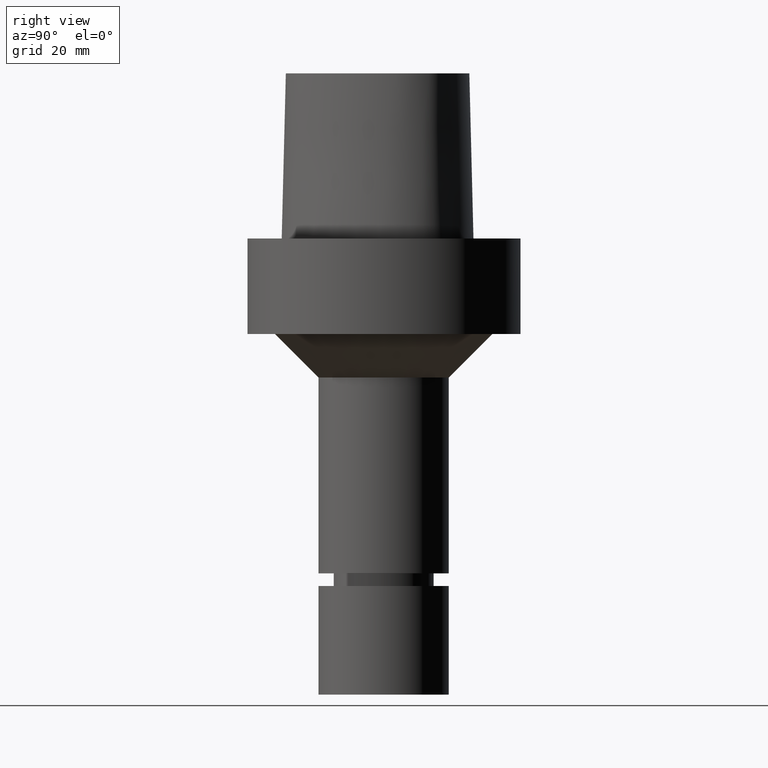
[diagram: clean part render]
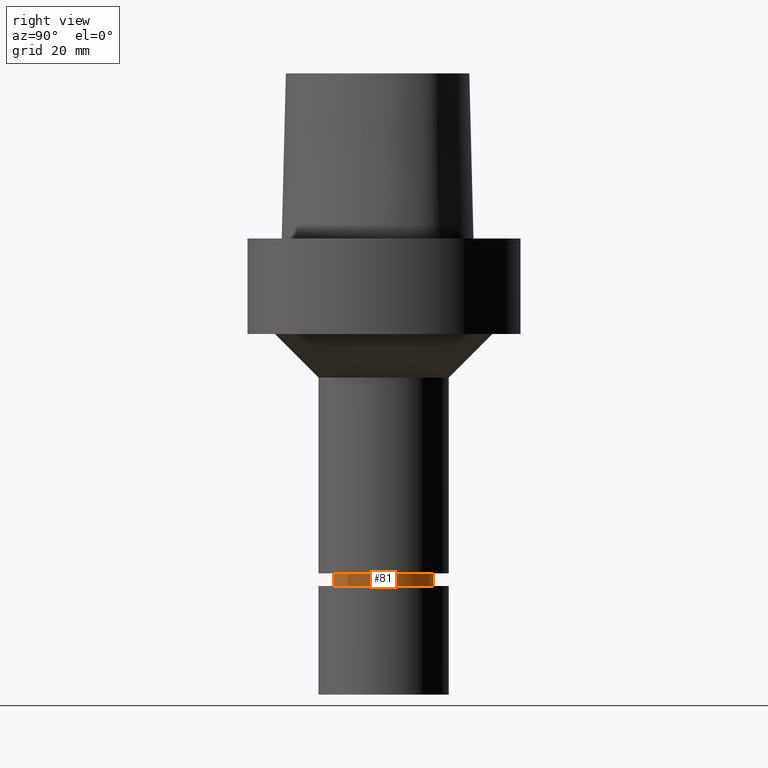
[diagram: same view with one face highlighted and labeled with its STEP entity id]
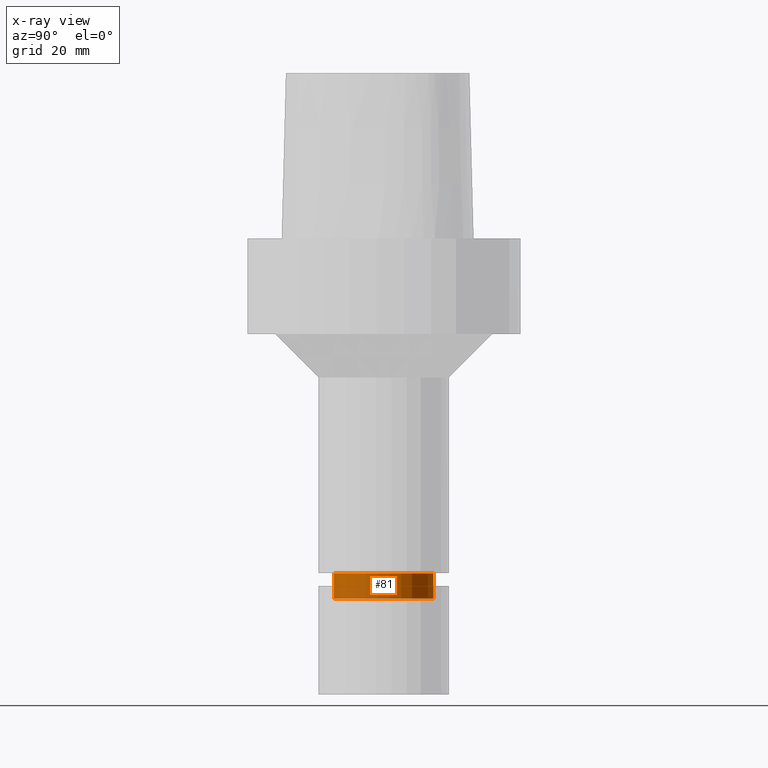
[diagram: x-ray of the same camera — body ghosted, the highlighted face saturated]
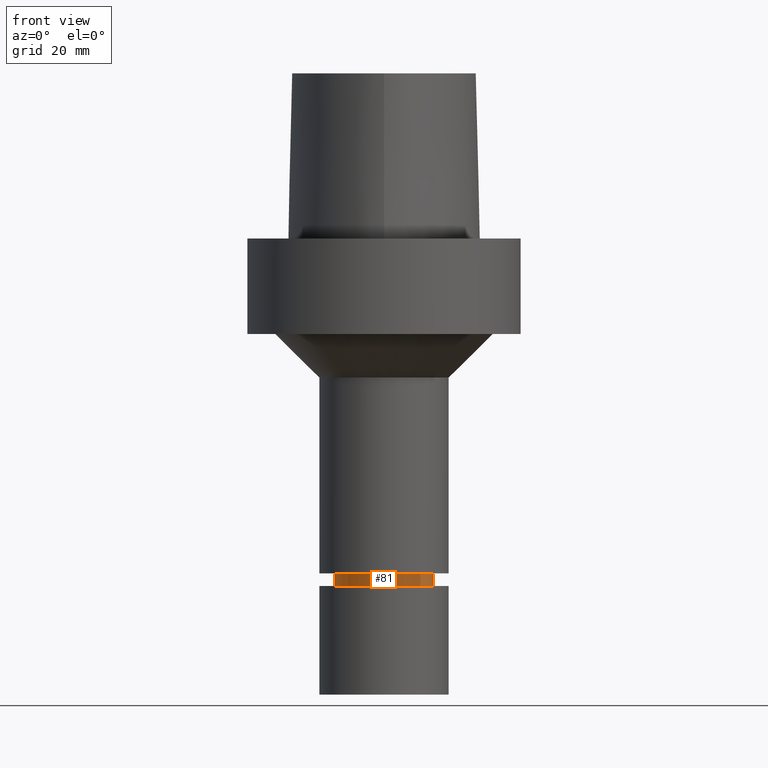
[diagram: same view with one face highlighted and labeled with its STEP entity id]
A machine part, right view. The second image highlights one B-rep face of the part: STEP entity #81.
The next image is the same camera in x-ray: the body ghosted, the highlighted face saturated — about 0% of this face is hidden behind the body in this view.
A second angle (front view) of the same face is appended — the face is thin or edge-on in the first view.
In plain terms, the highlighted cylindrical surface (bore or boss wall) has radius 11.5 mm, axis along (0, 0, -1).
Its self-contained STEP definition (entity closure, byte-faithful):
#81=ADVANCED_FACE('Unnamed[1]',(#203,#204),#205,.T.);
#100=EDGE_CURVE('Unnamed[1]',#233,#233,#234,.T.);
#131=EDGE_CURVE('Unnamed[1]',#279,#279,#280,.T.);
#203=FACE_BOUND('',#364,.T.);
#204=FACE_BOUND('',#365,.T.);
#205=CYLINDRICAL_SURFACE('',#366,11.4999999999964);
#233=VERTEX_POINT('',#486);
#234=CIRCLE('',#487,11.4999999999907);
#279=VERTEX_POINT('',#562);
#280=CIRCLE('',#563,11.5000000000021);
#364=EDGE_LOOP('',(#751));
#365=EDGE_LOOP('',(#752));
#366=AXIS2_PLACEMENT_3D('',#753,#754,#755);
#486=CARTESIAN_POINT('',(4.72101341771896E-015,11.4999999999907,-77.1000001144153));
#487=AXIS2_PLACEMENT_3D('',#779,#780,#781);
#562=CARTESIAN_POINT('',(5.07685443047376E-015,11.5000000000021,-82.9113248653973));
#563=AXIS2_PLACEMENT_3D('',#826,#827,#828);
#751=ORIENTED_EDGE('',*,*,#131,.F.);
#752=ORIENTED_EDGE('',*,*,#100,.T.);
#753=CARTESIAN_POINT('',(4.89893392409636E-015,9.79786784819272E-015,-80.0056624899063));
#754=DIRECTION('',(6.12323399573676E-017,1.22464679914735E-016,-1.0));
#755=DIRECTION('',(-1.23259516440783E-032,1.0,1.22464679914735E-016));
#779=CARTESIAN_POINT('',(4.72101341771896E-015,9.44202683543792E-015,-77.1000001144153));
#780=DIRECTION('',(6.12323399573677E-017,1.22464679914735E-016,-1.0));
#781=DIRECTION('',(-1.23259516440783E-032,1.0,1.22464679914735E-016));
#826=CARTESIAN_POINT('',(5.07685443047376E-015,1.01537088609475E-014,-82.9113248653973));
#827=DIRECTION('',(6.12323399573676E-017,1.22464679914735E-016,-1.0));
#828=DIRECTION('',(-1.23259516440783E-032,1.0,1.22464679914735E-016));